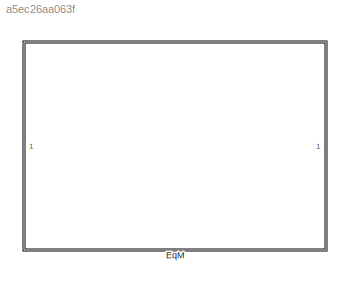
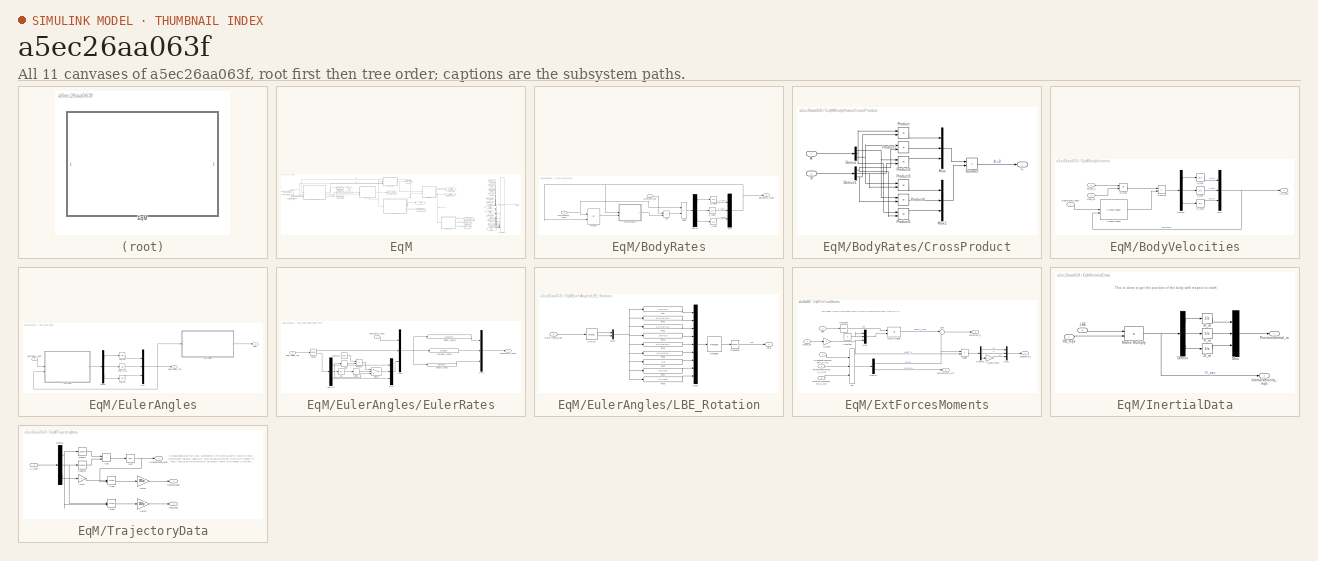
[diagram: thumbnail index - all 11 canvases of the model, root first then tree order]
MODEL slx_a5ec26aa063f
KIND library
CONFIG AbsTol = auto
CONFIG EnableMultiTasking = off
CONFIG FixedStep = auto
CONFIG MaxStep = auto
CONFIG MinStep = auto
CONFIG RelTol = 1e-3
CONFIG SampleTimeConstraint = Unconstrained
CONFIG SolverName = VariableStepAuto
CONFIG StartTime = 0.0
CONFIG StopTime = 10.0
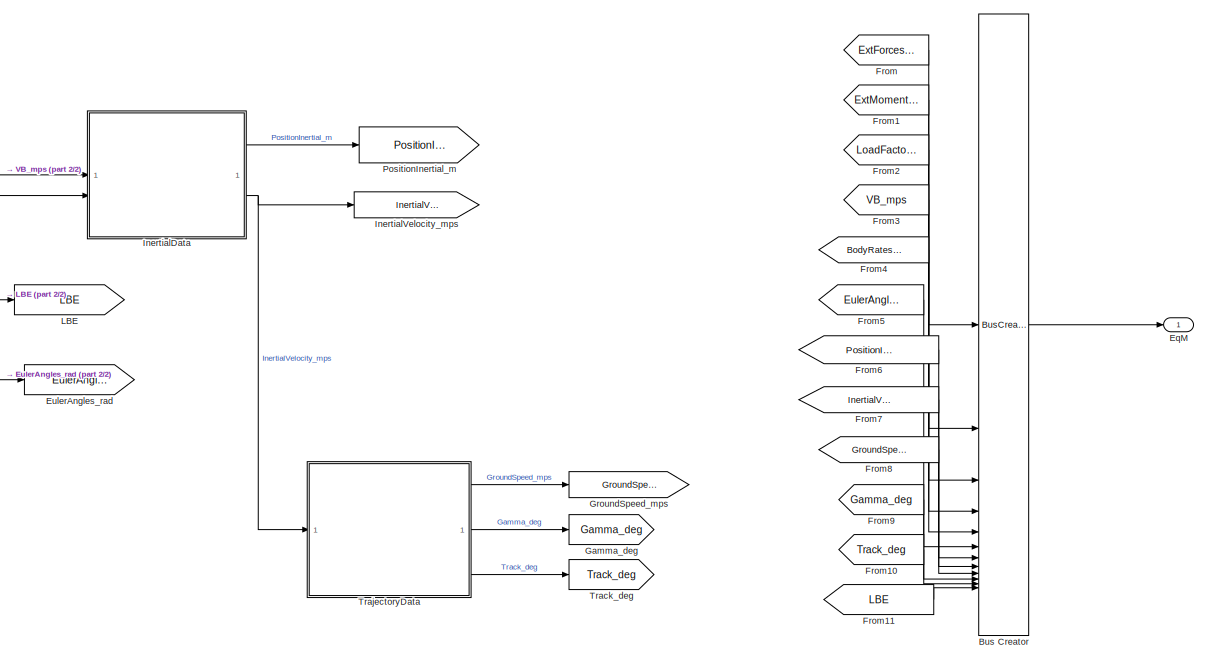
[diagram: EqM - part 1/2, right side, full height]
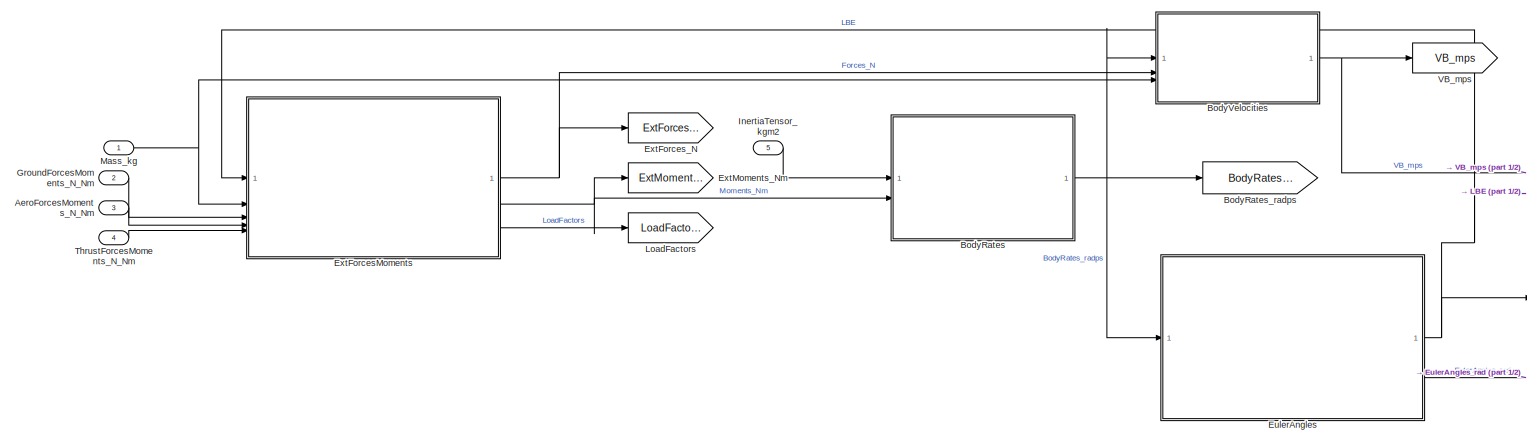
[diagram: EqM - part 2/2, middle left region]
BLOCK [SubSystem] EqM
BLOCK [Inport] EqM/AeroForcesMoments_N_Nm
  Port = 3
BLOCK [SubSystem] EqM/BodyRates
BLOCK [Sum] EqM/BodyRates/Add
  IconShape = rectangular
  Inputs = +-
BLOCK [Outport] EqM/BodyRates/BodyRates_radps
BLOCK [SubSystem] EqM/BodyRates/CrossProduct
BLOCK [Inport] EqM/BodyRates/CrossProduct/A
BLOCK [Inport] EqM/BodyRates/CrossProduct/B
  Port = 2
BLOCK [Outport] EqM/BodyRates/CrossProduct/C
BLOCK [Demux] EqM/BodyRates/CrossProduct/Demux
  Outputs = 3
BLOCK [Demux] EqM/BodyRates/CrossProduct/Demux1
  Outputs = 3
BLOCK [Mux] EqM/BodyRates/CrossProduct/Mux
  DisplayOption = bar
  Inputs = 3
BLOCK [Mux] EqM/BodyRates/CrossProduct/Mux1
  DisplayOption = bar
  Inputs = 3
BLOCK [Product] EqM/BodyRates/CrossProduct/Product
BLOCK [Product] EqM/BodyRates/CrossProduct/Product1
BLOCK [Product] EqM/BodyRates/CrossProduct/Product2
BLOCK [Product] EqM/BodyRates/CrossProduct/Product3
BLOCK [Product] EqM/BodyRates/CrossProduct/Product4
BLOCK [Product] EqM/BodyRates/CrossProduct/Product5
BLOCK [Sum] EqM/BodyRates/CrossProduct/Subtract
  IconShape = rectangular
  Inputs = +-
BLOCK [Demux] EqM/BodyRates/Demux
  Outputs = 3
BLOCK [Product] EqM/BodyRates/Divide
  Inputs = /*
  Multiplication = Matrix(*)
BLOCK [Inport] EqM/BodyRates/InertiaTensor_kgm2
BLOCK [Inport] EqM/BodyRates/Moments_Nm
  Port = 2
BLOCK [Mux] EqM/BodyRates/Mux
  DisplayOption = bar
  Inputs = 3
BLOCK [Product] EqM/BodyRates/Product
  Multiplication = Matrix(*)
BLOCK [Integrator] EqM/BodyRates/p_radps
  ContinuousStateAttributes = 'p_radps'
BLOCK [Integrator] EqM/BodyRates/q_radps
  ContinuousStateAttributes = 'q_radps'
BLOCK [Integrator] EqM/BodyRates/r_radps
  ContinuousStateAttributes = 'r_radps'
BLOCK [Goto] EqM/BodyRates_radps
  GotoTag = BodyRates_radps
BLOCK [SubSystem] EqM/BodyVelocities
BLOCK [Inport] EqM/BodyVelocities/BodyRates_radps
BLOCK [Reference] EqM/BodyVelocities/CrossProduct  REF=$bdroot/EqM/BodyRates/CrossProduct
  SourceBlock = $bdroot/EqM/BodyRates/CrossProduct
  SourceType = SubSystem
BLOCK [Demux] EqM/BodyVelocities/Demux
  Outputs = 3
BLOCK [Product] EqM/BodyVelocities/Divide
  Inputs = */
BLOCK [Inport] EqM/BodyVelocities/Forces_N
  Port = 2
BLOCK [Inport] EqM/BodyVelocities/Mass_kg
  Port = 3
BLOCK [Mux] EqM/BodyVelocities/Mux
  DisplayOption = bar
  Inputs = 3
BLOCK [Sum] EqM/BodyVelocities/Subtract
  IconShape = rectangular
  Inputs = +-
BLOCK [Outport] EqM/BodyVelocities/VB_mps
BLOCK [Integrator] EqM/BodyVelocities/u_mps
  ContinuousStateAttributes = 'u_mps'
BLOCK [Integrator] EqM/BodyVelocities/v_mps
  ContinuousStateAttributes = 'v_mps'
BLOCK [Integrator] EqM/BodyVelocities/w_mps
  ContinuousStateAttributes = 'w_mps'
BLOCK [BusCreator] EqM/Bus Creator
  DisplayOption = bar
  InheritFromInputs = on
  Inputs = 12
BLOCK [Outport] EqM/EqM
BLOCK [SubSystem] EqM/EulerAngles
BLOCK [Inport] EqM/EulerAngles/BodyRates_radps
BLOCK [Demux] EqM/EulerAngles/Demux
  Outputs = 3
BLOCK [Outport] EqM/EulerAngles/EulerAngles_rad
  Port = 2
BLOCK [SubSystem] EqM/EulerAngles/EulerRates
BLOCK [Abs] EqM/EulerAngles/EulerRates/Abs
  SaturateOnIntegerOverflow = off
BLOCK [Inport] EqM/EulerAngles/EulerRates/BodyRates_radps
BLOCK [Constant] EqM/EulerAngles/EulerRates/Constant
  Value = 0.001
BLOCK [Demux] EqM/EulerAngles/EulerRates/Demux1
  Outputs = 3
BLOCK [Inport] EqM/EulerAngles/EulerRates/EulerAngles_rad
  Port = 2
BLOCK [Outport] EqM/EulerAngles/EulerRates/EulerRates_radps2
BLOCK [Mux] EqM/EulerAngles/EulerRates/Mux
  DisplayOption = bar
  Inputs = 3
BLOCK [Mux] EqM/EulerAngles/EulerRates/Mux1
  DisplayOption = bar
  Inputs = 3
BLOCK [Mux] EqM/EulerAngles/EulerRates/Mux2
  DisplayOption = bar
  Inputs = 3
BLOCK [Product] EqM/EulerAngles/EulerRates/Product
BLOCK [Relay] EqM/EulerAngles/EulerRates/Relay
  OffOutputValue = 1
  OffSwitchValue = 0
  OnOutputValue = 0
  OnSwitchValue = 0.001
BLOCK [Signum] EqM/EulerAngles/EulerRates/Sign
BLOCK [Trigonometry] EqM/EulerAngles/EulerRates/SinCos
  Operator = sincos
BLOCK [Switch] EqM/EulerAngles/EulerRates/Switch
  Criteria = u2 > Threshold
  InputSameDT = off
  SaturateOnIntegerOverflow = off
  Threshold = 0.5
BLOCK [Fcn] EqM/EulerAngles/EulerRates/phidot_radps2
  Expr = u(1)+u(2)*u(4)*(u(5)/u(8))+u(3)*u(7)*(u(5)/u(8))
BLOCK [Fcn] EqM/EulerAngles/EulerRates/psidot_radps2
  Expr = (u(2)*u(5)+u(3)*u(7))/u(8)
BLOCK [Fcn] EqM/EulerAngles/EulerRates/thetadot_radps2
  Expr = u(2)*u(8)-u(3)*u(4)
BLOCK [Outport] EqM/EulerAngles/LBE
BLOCK [SubSystem] EqM/EulerAngles/LBE_Rotation
BLOCK [Inport] EqM/EulerAngles/LBE_Rotation/EulerAngles_rad
BLOCK [Fcn] EqM/EulerAngles/LBE_Rotation/Fcn
  Expr = u(5)*u(6)
BLOCK [Fcn] EqM/EulerAngles/LBE_Rotation/Fcn1
  Expr = u(1)*u(2)*u(6)-u(4)*u(3)
BLOCK [Fcn] EqM/EulerAngles/LBE_Rotation/Fcn2
  Expr = u(4)*u(2)*u(6)+u(1)*u(3)
BLOCK [Fcn] EqM/EulerAngles/LBE_Rotation/Fcn3
  Expr = u(5)*u(3)
BLOCK [Fcn] EqM/EulerAngles/LBE_Rotation/Fcn4
  Expr = u(4)*u(6)+u(1)*u(2)*u(3)
BLOCK [Fcn] EqM/EulerAngles/LBE_Rotation/Fcn5
  Expr = -u(1)*u(6)+u(4)*u(2)*u(3)
BLOCK [Fcn] EqM/EulerAngles/LBE_Rotation/Fcn6
  Expr = -u(2)
BLOCK [Fcn] EqM/EulerAngles/LBE_Rotation/Fcn7
  Expr = u(1)*u(5)
BLOCK [Fcn] EqM/EulerAngles/LBE_Rotation/Fcn8
  Expr = u(4)*u(5)
BLOCK [Outport] EqM/EulerAngles/LBE_Rotation/LBE
BLOCK [Mux] EqM/EulerAngles/LBE_Rotation/Mux1
  DisplayOption = bar
  Inputs = 2
BLOCK [Mux] EqM/EulerAngles/LBE_Rotation/Mux2
  DisplayOption = bar
  Inputs = 9
BLOCK [Reshape] EqM/EulerAngles/LBE_Rotation/Reshape
  OutputDimensionality = Customize
  OutputDimensions = [3,3]
BLOCK [Trigonometry] EqM/EulerAngles/LBE_Rotation/SinCos
  Operator = sincos
BLOCK [Math] EqM/EulerAngles/LBE_Rotation/Transpose
  Operator = transpose
BLOCK [Mux] EqM/EulerAngles/Mux
  DisplayOption = bar
  Inputs = 3
BLOCK [Integrator] EqM/EulerAngles/PHI_rad
  ContinuousStateAttributes = 'PHI_rad'
BLOCK [Integrator] EqM/EulerAngles/PSI_rad
  ContinuousStateAttributes = 'PSI_rad'
BLOCK [Integrator] EqM/EulerAngles/THETA_rad
  ContinuousStateAttributes = 'THETA_rad'
BLOCK [Goto] EqM/EulerAngles_rad
  GotoTag = EulerAngles_rad
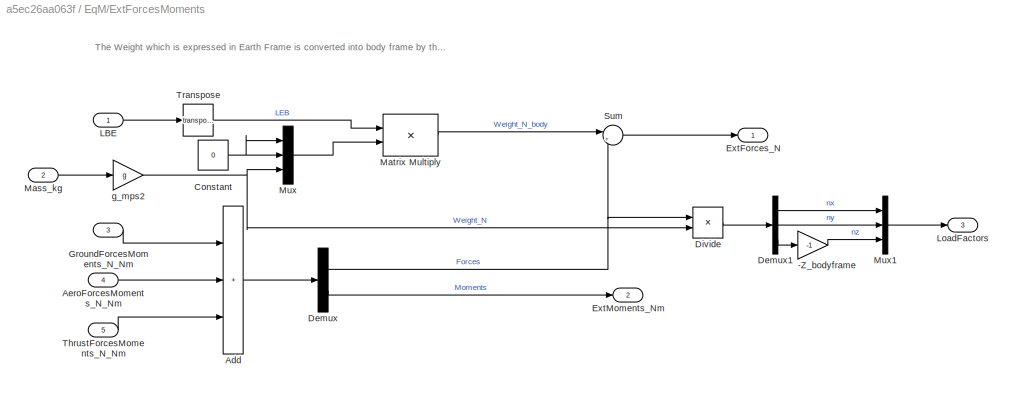
BLOCK [SubSystem] EqM/ExtForcesMoments
BLOCK [Gain] EqM/ExtForcesMoments/-Z_bodyframe
  Gain = -1
BLOCK [Sum] EqM/ExtForcesMoments/Add
  IconShape = rectangular
  Inputs = +++
BLOCK [Inport] EqM/ExtForcesMoments/AeroForcesMoments_N_Nm
  Port = 4
BLOCK [Constant] EqM/ExtForcesMoments/Constant
  Value = 0
BLOCK [Demux] EqM/ExtForcesMoments/Demux
  Outputs = 2
BLOCK [Demux] EqM/ExtForcesMoments/Demux1
  Outputs = 3
BLOCK [Product] EqM/ExtForcesMoments/Divide
  Inputs = */
  Multiplication = Matrix(*)
BLOCK [Outport] EqM/ExtForcesMoments/ExtForces_N
BLOCK [Outport] EqM/ExtForcesMoments/ExtMoments_Nm
  Port = 2
BLOCK [Inport] EqM/ExtForcesMoments/GroundForcesMoments_N_Nm
  Port = 3
BLOCK [Inport] EqM/ExtForcesMoments/LBE
BLOCK [Outport] EqM/ExtForcesMoments/LoadFactors
  Port = 3
BLOCK [Inport] EqM/ExtForcesMoments/Mass_kg
  Port = 2
BLOCK [Product] EqM/ExtForcesMoments/Matrix Multiply
  Multiplication = Matrix(*)
BLOCK [Mux] EqM/ExtForcesMoments/Mux
  DisplayOption = bar
  Inputs = 3
BLOCK [Mux] EqM/ExtForcesMoments/Mux1
  DisplayOption = bar
  Inputs = 3
BLOCK [Sum] EqM/ExtForcesMoments/Sum
  Inputs = |++
BLOCK [Inport] EqM/ExtForcesMoments/ThrustForcesMoments_N_Nm
  Port = 5
BLOCK [Math] EqM/ExtForcesMoments/Transpose
  Operator = transpose
BLOCK [Gain] EqM/ExtForcesMoments/g_mps2
  Gain = g
BLOCK [Goto] EqM/ExtForces_N
  GotoTag = ExtForces_N
BLOCK [Goto] EqM/ExtMoments_Nm
  GotoTag = ExtMoments_Nm
BLOCK [From] EqM/From
  GotoTag = ExtForces_N
BLOCK [From] EqM/From1
  GotoTag = ExtMoments_Nm
BLOCK [From] EqM/From10
  GotoTag = Track_deg
BLOCK [From] EqM/From11
  GotoTag = LBE
BLOCK [From] EqM/From2
  GotoTag = LoadFactors
BLOCK [From] EqM/From3
  GotoTag = VB_mps
BLOCK [From] EqM/From4
  GotoTag = BodyRates_radps
BLOCK [From] EqM/From5
  GotoTag = EulerAngles_rad
BLOCK [From] EqM/From6
  GotoTag = PositionInertial_m
BLOCK [From] EqM/From7
  GotoTag = InertialVelocity_mps
BLOCK [From] EqM/From8
  GotoTag = GroundSpeed_mps
BLOCK [From] EqM/From9
  GotoTag = Gamma_deg
BLOCK [Goto] EqM/Gamma_deg
  GotoTag = Gamma_deg
BLOCK [Inport] EqM/GroundForcesMoments_N_Nm
  Port = 2
BLOCK [Goto] EqM/GroundSpeed_mps
  GotoTag = GroundSpeed_mps
BLOCK [Inport] EqM/InertiaTensor_kgm2
  Port = 5
BLOCK [SubSystem] EqM/InertialData
BLOCK [Demux] EqM/InertialData/Demux
  Outputs = 3
BLOCK [Outport] EqM/InertialData/InertialVelocity_mps
  Port = 2
BLOCK [Inport] EqM/InertialData/LBE
  Port = 2
BLOCK [Product] EqM/InertialData/Matrix Multiply
  Multiplication = Matrix(*)
BLOCK [Mux] EqM/InertialData/Mux
  DisplayOption = bar
  Inputs = 3
BLOCK [Outport] EqM/InertialData/PositionInertial_m
BLOCK [Inport] EqM/InertialData/VB_mps
BLOCK [Integrator] EqM/InertialData/XI_m
  ContinuousStateAttributes = 'XI_m'
BLOCK [Integrator] EqM/InertialData/YI_m
  ContinuousStateAttributes = 'YI_m'
BLOCK [Integrator] EqM/InertialData/ZI_m
  ContinuousStateAttributes = 'ZI_m'
BLOCK [Goto] EqM/InertialVelocity_mps
  GotoTag = InertialVelocity_mps
BLOCK [Goto] EqM/LBE
  GotoTag = LBE
BLOCK [Goto] EqM/LoadFactors
  GotoTag = LoadFactors
BLOCK [Inport] EqM/Mass_kg
BLOCK [Goto] EqM/PositionInertial_m
  GotoTag = PositionInertial_m
BLOCK [Inport] EqM/ThrustForcesMoments_N_Nm
  Port = 4
BLOCK [Goto] EqM/Track_deg
  GotoTag = Track_deg
BLOCK [SubSystem] EqM/TrajectoryData
BLOCK [Sum] EqM/TrajectoryData/Add
  IconShape = rectangular
BLOCK [Trigonometry] EqM/TrajectoryData/Atan1
  Operator = atan2
BLOCK [Trigonometry] EqM/TrajectoryData/Atan2
  Operator = atan2
BLOCK [Demux] EqM/TrajectoryData/Demux
  Outputs = 3
BLOCK [Gain] EqM/TrajectoryData/Gain
  Gain = -1
BLOCK [Gain] EqM/TrajectoryData/Gain1
  Gain = 180/pi
BLOCK [Gain] EqM/TrajectoryData/Gain2
  Gain = 180/pi
BLOCK [Outport] EqM/TrajectoryData/Gamma_deg
  Port = 2
BLOCK [Outport] EqM/TrajectoryData/GroundSpeed_mps
BLOCK [Sqrt] EqM/TrajectoryData/Sqrt
BLOCK [Math] EqM/TrajectoryData/Square
  Operator = square
BLOCK [Math] EqM/TrajectoryData/Square1
  Operator = square
BLOCK [Outport] EqM/TrajectoryData/Track_deg
  Port = 3
BLOCK [Inport] EqM/TrajectoryData/VI_mps
BLOCK [Goto] EqM/VB_mps
  GotoTag = VB_mps
ANNOTATION EqM/ExtForcesMoments: The Weight which is expressed in Earth Frame is converted into body frame by the matrix multiplication. The sum of external forces is given by adding all the forces with weight. The forces are divided by Weight to give the load factors.
ANNOTATION EqM/InertialData: This is done to get the position of the body with respect to earth
ANNOTATION EqM/TrajectoryData: GroundSpeed gives the x and y components in the inertial(earth) frame of reference Gamma_deg Trajectory angle will give the data on aircraft climb with respect to the horizon. Track Angle gives the direction of the velocity vector with respect to the north.
LINE EqM/AeroForcesMoments_N_Nm:1 -> EqM/ExtForcesMoments:4
LINE EqM/BodyRates/Add:1 -> EqM/BodyRates/Divide:2
LINE EqM/BodyRates/CrossProduct/A:1 -> EqM/BodyRates/CrossProduct/Demux:1
LINE EqM/BodyRates/CrossProduct/B:1 -> EqM/BodyRates/CrossProduct/Demux1:1
NET EqM/BodyRates/CrossProduct/Demux1:1 -> EqM/BodyRates/CrossProduct/Product1:2, EqM/BodyRates/CrossProduct/Product5:2
NET EqM/BodyRates/CrossProduct/Demux1:2 -> EqM/BodyRates/CrossProduct/Product2:2, EqM/BodyRates/CrossProduct/Product3:2
NET EqM/BodyRates/CrossProduct/Demux1:3 -> EqM/BodyRates/CrossProduct/Product4:2, EqM/BodyRates/CrossProduct/Product:2
NET EqM/BodyRates/CrossProduct/Demux:1 -> EqM/BodyRates/CrossProduct/Product2:1, EqM/BodyRates/CrossProduct/Product4:1
NET EqM/BodyRates/CrossProduct/Demux:2 -> EqM/BodyRates/CrossProduct/Product5:1, EqM/BodyRates/CrossProduct/Product:1
NET EqM/BodyRates/CrossProduct/Demux:3 -> EqM/BodyRates/CrossProduct/Product1:1, EqM/BodyRates/CrossProduct/Product3:1
LINE EqM/BodyRates/CrossProduct/Mux1:1 -> EqM/BodyRates/CrossProduct/Subtract:2
LINE EqM/BodyRates/CrossProduct/Mux:1 -> EqM/BodyRates/CrossProduct/Subtract:1
LINE EqM/BodyRates/CrossProduct/Product1:1 -> EqM/BodyRates/CrossProduct/Mux:2
LINE EqM/BodyRates/CrossProduct/Product2:1 -> EqM/BodyRates/CrossProduct/Mux:3
LINE EqM/BodyRates/CrossProduct/Product3:1 -> EqM/BodyRates/CrossProduct/Mux1:1
LINE EqM/BodyRates/CrossProduct/Product4:1 -> EqM/BodyRates/CrossProduct/Mux1:2
LINE EqM/BodyRates/CrossProduct/Product5:1 -> EqM/BodyRates/CrossProduct/Mux1:3
LINE EqM/BodyRates/CrossProduct/Product:1 -> EqM/BodyRates/CrossProduct/Mux:1
LINE EqM/BodyRates/CrossProduct/Subtract:1 -> EqM/BodyRates/CrossProduct/C:1
LINE EqM/BodyRates/CrossProduct:1 -> EqM/BodyRates/Add:2
LINE EqM/BodyRates/Demux:1 -> EqM/BodyRates/p_radps:1
LINE EqM/BodyRates/Demux:2 -> EqM/BodyRates/q_radps:1
LINE EqM/BodyRates/Demux:3 -> EqM/BodyRates/r_radps:1
LINE EqM/BodyRates/Divide:1 -> EqM/BodyRates/Demux:1
NET EqM/BodyRates/InertiaTensor_kgm2:1 -> EqM/BodyRates/Divide:1, EqM/BodyRates/Product:1
LINE EqM/BodyRates/Moments_Nm:1 -> EqM/BodyRates/Add:1
NET EqM/BodyRates/Mux:1 -> EqM/BodyRates/BodyRates_radps:1, EqM/BodyRates/CrossProduct:1, EqM/BodyRates/Product:2
LINE EqM/BodyRates/Product:1 -> EqM/BodyRates/CrossProduct:2
LINE EqM/BodyRates/p_radps:1 -> EqM/BodyRates/Mux:1
LINE EqM/BodyRates/q_radps:1 -> EqM/BodyRates/Mux:2
LINE EqM/BodyRates/r_radps:1 -> EqM/BodyRates/Mux:3
NET EqM/BodyRates:1 -> EqM/BodyRates_radps:1, EqM/BodyVelocities:1, EqM/EulerAngles:1
LINE EqM/BodyVelocities/BodyRates_radps:1 -> EqM/BodyVelocities/CrossProduct:1
LINE EqM/BodyVelocities/CrossProduct:1 -> EqM/BodyVelocities/Subtract:2
LINE EqM/BodyVelocities/Demux:1 -> EqM/BodyVelocities/u_mps:1
LINE EqM/BodyVelocities/Demux:2 -> EqM/BodyVelocities/v_mps:1
LINE EqM/BodyVelocities/Demux:3 -> EqM/BodyVelocities/w_mps:1
LINE EqM/BodyVelocities/Divide:1 -> EqM/BodyVelocities/Subtract:1
LINE EqM/BodyVelocities/Forces_N:1 -> EqM/BodyVelocities/Divide:1
LINE EqM/BodyVelocities/Mass_kg:1 -> EqM/BodyVelocities/Divide:2
NET EqM/BodyVelocities/Mux:1 -> EqM/BodyVelocities/CrossProduct:2, EqM/BodyVelocities/VB_mps:1
LINE EqM/BodyVelocities/Subtract:1 -> EqM/BodyVelocities/Demux:1
LINE EqM/BodyVelocities/u_mps:1 -> EqM/BodyVelocities/Mux:1
LINE EqM/BodyVelocities/v_mps:1 -> EqM/BodyVelocities/Mux:2
LINE EqM/BodyVelocities/w_mps:1 -> EqM/BodyVelocities/Mux:3
NET EqM/BodyVelocities:1 -> EqM/InertialData:1, EqM/VB_mps:1
LINE EqM/Bus Creator:1 -> EqM/EqM:1
LINE EqM/EulerAngles/BodyRates_radps:1 -> EqM/EulerAngles/EulerRates:1
LINE EqM/EulerAngles/Demux:1 -> EqM/EulerAngles/PHI_rad:1
LINE EqM/EulerAngles/Demux:2 -> EqM/EulerAngles/THETA_rad:1
LINE EqM/EulerAngles/Demux:3 -> EqM/EulerAngles/PSI_rad:1
LINE EqM/EulerAngles/EulerRates/Abs:1 -> EqM/EulerAngles/EulerRates/Relay:1
LINE EqM/EulerAngles/EulerRates/BodyRates_radps:1 -> EqM/EulerAngles/EulerRates/Mux:1
LINE EqM/EulerAngles/EulerRates/Constant:1 -> EqM/EulerAngles/EulerRates/Product:1
LINE EqM/EulerAngles/EulerRates/Demux1:1 -> EqM/EulerAngles/EulerRates/Mux1:1
NET EqM/EulerAngles/EulerRates/Demux1:2 -> EqM/EulerAngles/EulerRates/Abs:1, EqM/EulerAngles/EulerRates/Sign:1, EqM/EulerAngles/EulerRates/Switch:3
LINE EqM/EulerAngles/EulerRates/Demux1:3 -> EqM/EulerAngles/EulerRates/Mux1:3
LINE EqM/EulerAngles/EulerRates/EulerAngles_rad:1 -> EqM/EulerAngles/EulerRates/SinCos:1
LINE EqM/EulerAngles/EulerRates/Mux1:1 -> EqM/EulerAngles/EulerRates/Mux:3
LINE EqM/EulerAngles/EulerRates/Mux2:1 -> EqM/EulerAngles/EulerRates/EulerRates_radps2:1
NET EqM/EulerAngles/EulerRates/Mux:1 -> EqM/EulerAngles/EulerRates/phidot_radps2:1, EqM/EulerAngles/EulerRates/psidot_radps2:1, EqM/EulerAngles/EulerRates/thetadot_radps2:1
LINE EqM/EulerAngles/EulerRates/Product:1 -> EqM/EulerAngles/EulerRates/Switch:1
LINE EqM/EulerAngles/EulerRates/Relay:1 -> EqM/EulerAngles/EulerRates/Switch:2
LINE EqM/EulerAngles/EulerRates/Sign:1 -> EqM/EulerAngles/EulerRates/Product:2
LINE EqM/EulerAngles/EulerRates/SinCos:1 -> EqM/EulerAngles/EulerRates/Mux:2
LINE EqM/EulerAngles/EulerRates/SinCos:2 -> EqM/EulerAngles/EulerRates/Demux1:1
LINE EqM/EulerAngles/EulerRates/Switch:1 -> EqM/EulerAngles/EulerRates/Mux1:2
LINE EqM/EulerAngles/EulerRates/phidot_radps2:1 -> EqM/EulerAngles/EulerRates/Mux2:1
LINE EqM/EulerAngles/EulerRates/psidot_radps2:1 -> EqM/EulerAngles/EulerRates/Mux2:3
LINE EqM/EulerAngles/EulerRates/thetadot_radps2:1 -> EqM/EulerAngles/EulerRates/Mux2:2
LINE EqM/EulerAngles/EulerRates:1 -> EqM/EulerAngles/Demux:1
LINE EqM/EulerAngles/LBE_Rotation/EulerAngles_rad:1 -> EqM/EulerAngles/LBE_Rotation/SinCos:1
LINE EqM/EulerAngles/LBE_Rotation/Fcn1:1 -> EqM/EulerAngles/LBE_Rotation/Mux2:2
LINE EqM/EulerAngles/LBE_Rotation/Fcn2:1 -> EqM/EulerAngles/LBE_Rotation/Mux2:3
LINE EqM/EulerAngles/LBE_Rotation/Fcn3:1 -> EqM/EulerAngles/LBE_Rotation/Mux2:4
LINE EqM/EulerAngles/LBE_Rotation/Fcn4:1 -> EqM/EulerAngles/LBE_Rotation/Mux2:5
LINE EqM/EulerAngles/LBE_Rotation/Fcn5:1 -> EqM/EulerAngles/LBE_Rotation/Mux2:6
LINE EqM/EulerAngles/LBE_Rotation/Fcn6:1 -> EqM/EulerAngles/LBE_Rotation/Mux2:7
LINE EqM/EulerAngles/LBE_Rotation/Fcn7:1 -> EqM/EulerAngles/LBE_Rotation/Mux2:8
LINE EqM/EulerAngles/LBE_Rotation/Fcn8:1 -> EqM/EulerAngles/LBE_Rotation/Mux2:9
LINE EqM/EulerAngles/LBE_Rotation/Fcn:1 -> EqM/EulerAngles/LBE_Rotation/Mux2:1
NET EqM/EulerAngles/LBE_Rotation/Mux1:1 -> EqM/EulerAngles/LBE_Rotation/Fcn1:1, EqM/EulerAngles/LBE_Rotation/Fcn2:1, EqM/EulerAngles/LBE_Rotation/Fcn3:1, EqM/EulerAngles/LBE_Rotation/Fcn4:1, EqM/EulerAngles/LBE_Rotation/Fcn5:1, EqM/EulerAngles/LBE_Rotation/Fcn6:1, EqM/EulerAngles/LBE_Rotation/Fcn7:1, EqM/EulerAngles/LBE_Rotation/Fcn8:1, EqM/EulerAngles/LBE_Rotation/Fcn:1
LINE EqM/EulerAngles/LBE_Rotation/Mux2:1 -> EqM/EulerAngles/LBE_Rotation/Reshape:1
LINE EqM/EulerAngles/LBE_Rotation/Reshape:1 -> EqM/EulerAngles/LBE_Rotation/Transpose:1
LINE EqM/EulerAngles/LBE_Rotation/SinCos:1 -> EqM/EulerAngles/LBE_Rotation/Mux1:1
LINE EqM/EulerAngles/LBE_Rotation/SinCos:2 -> EqM/EulerAngles/LBE_Rotation/Mux1:2
LINE EqM/EulerAngles/LBE_Rotation/Transpose:1 -> EqM/EulerAngles/LBE_Rotation/LBE:1
LINE EqM/EulerAngles/LBE_Rotation:1 -> EqM/EulerAngles/LBE:1
NET EqM/EulerAngles/Mux:1 -> EqM/EulerAngles/EulerAngles_rad:1, EqM/EulerAngles/EulerRates:2, EqM/EulerAngles/LBE_Rotation:1
LINE EqM/EulerAngles/PHI_rad:1 -> EqM/EulerAngles/Mux:1
LINE EqM/EulerAngles/PSI_rad:1 -> EqM/EulerAngles/Mux:3
LINE EqM/EulerAngles/THETA_rad:1 -> EqM/EulerAngles/Mux:2
NET EqM/EulerAngles:1 -> EqM/ExtForcesMoments:1, EqM/InertialData:2, EqM/LBE:1
LINE EqM/EulerAngles:2 -> EqM/EulerAngles_rad:1
LINE EqM/ExtForcesMoments/-Z_bodyframe:1 -> EqM/ExtForcesMoments/Mux1:3
LINE EqM/ExtForcesMoments/Add:1 -> EqM/ExtForcesMoments/Demux:1
LINE EqM/ExtForcesMoments/AeroForcesMoments_N_Nm:1 -> EqM/ExtForcesMoments/Add:2
NET EqM/ExtForcesMoments/Constant:1 -> EqM/ExtForcesMoments/Mux:1, EqM/ExtForcesMoments/Mux:2
LINE EqM/ExtForcesMoments/Demux1:1 -> EqM/ExtForcesMoments/Mux1:1
LINE EqM/ExtForcesMoments/Demux1:2 -> EqM/ExtForcesMoments/Mux1:2
LINE EqM/ExtForcesMoments/Demux1:3 -> EqM/ExtForcesMoments/-Z_bodyframe:1
NET EqM/ExtForcesMoments/Demux:1 -> EqM/ExtForcesMoments/Divide:1, EqM/ExtForcesMoments/Sum:2
LINE EqM/ExtForcesMoments/Demux:2 -> EqM/ExtForcesMoments/ExtMoments_Nm:1
LINE EqM/ExtForcesMoments/Divide:1 -> EqM/ExtForcesMoments/Demux1:1
LINE EqM/ExtForcesMoments/GroundForcesMoments_N_Nm:1 -> EqM/ExtForcesMoments/Add:1
LINE EqM/ExtForcesMoments/LBE:1 -> EqM/ExtForcesMoments/Transpose:1
LINE EqM/ExtForcesMoments/Mass_kg:1 -> EqM/ExtForcesMoments/g_mps2:1
LINE EqM/ExtForcesMoments/Matrix Multiply:1 -> EqM/ExtForcesMoments/Sum:1
LINE EqM/ExtForcesMoments/Mux1:1 -> EqM/ExtForcesMoments/LoadFactors:1
LINE EqM/ExtForcesMoments/Mux:1 -> EqM/ExtForcesMoments/Matrix Multiply:2
LINE EqM/ExtForcesMoments/Sum:1 -> EqM/ExtForcesMoments/ExtForces_N:1
LINE EqM/ExtForcesMoments/ThrustForcesMoments_N_Nm:1 -> EqM/ExtForcesMoments/Add:3
LINE EqM/ExtForcesMoments/Transpose:1 -> EqM/ExtForcesMoments/Matrix Multiply:1
NET EqM/ExtForcesMoments/g_mps2:1 -> EqM/ExtForcesMoments/Divide:2, EqM/ExtForcesMoments/Mux:3
NET EqM/ExtForcesMoments:1 -> EqM/BodyVelocities:2, EqM/ExtForces_N:1
NET EqM/ExtForcesMoments:2 -> EqM/BodyRates:2, EqM/ExtMoments_Nm:1
LINE EqM/ExtForcesMoments:3 -> EqM/LoadFactors:1
LINE EqM/From10:1 -> EqM/Bus Creator:11
LINE EqM/From11:1 -> EqM/Bus Creator:12
LINE EqM/From1:1 -> EqM/Bus Creator:2
LINE EqM/From2:1 -> EqM/Bus Creator:3
LINE EqM/From3:1 -> EqM/Bus Creator:4
LINE EqM/From4:1 -> EqM/Bus Creator:5
LINE EqM/From5:1 -> EqM/Bus Creator:6
LINE EqM/From6:1 -> EqM/Bus Creator:7
LINE EqM/From7:1 -> EqM/Bus Creator:8
LINE EqM/From8:1 -> EqM/Bus Creator:9
LINE EqM/From9:1 -> EqM/Bus Creator:10
LINE EqM/From:1 -> EqM/Bus Creator:1
LINE EqM/GroundForcesMoments_N_Nm:1 -> EqM/ExtForcesMoments:3
LINE EqM/InertiaTensor_kgm2:1 -> EqM/BodyRates:1
LINE EqM/InertialData/Demux:1 -> EqM/InertialData/XI_m:1
LINE EqM/InertialData/Demux:2 -> EqM/InertialData/YI_m:1
LINE EqM/InertialData/Demux:3 -> EqM/InertialData/ZI_m:1
LINE EqM/InertialData/LBE:1 -> EqM/InertialData/Matrix Multiply:1
NET EqM/InertialData/Matrix Multiply:1 -> EqM/InertialData/Demux:1, EqM/InertialData/InertialVelocity_mps:1
LINE EqM/InertialData/Mux:1 -> EqM/InertialData/PositionInertial_m:1
LINE EqM/InertialData/VB_mps:1 -> EqM/InertialData/Matrix Multiply:2
LINE EqM/InertialData/XI_m:1 -> EqM/InertialData/Mux:1
LINE EqM/InertialData/YI_m:1 -> EqM/InertialData/Mux:2
LINE EqM/InertialData/ZI_m:1 -> EqM/InertialData/Mux:3
LINE EqM/InertialData:1 -> EqM/PositionInertial_m:1
NET EqM/InertialData:2 -> EqM/InertialVelocity_mps:1, EqM/TrajectoryData:1
NET EqM/Mass_kg:1 -> EqM/BodyVelocities:3, EqM/ExtForcesMoments:2
LINE EqM/ThrustForcesMoments_N_Nm:1 -> EqM/ExtForcesMoments:5
LINE EqM/TrajectoryData/Add:1 -> EqM/TrajectoryData/Sqrt:1
LINE EqM/TrajectoryData/Atan1:1 -> EqM/TrajectoryData/Gain2:1
LINE EqM/TrajectoryData/Atan2:1 -> EqM/TrajectoryData/Gain1:1
NET EqM/TrajectoryData/Demux:1 -> EqM/TrajectoryData/Atan1:2, EqM/TrajectoryData/Square:1
NET EqM/TrajectoryData/Demux:2 -> EqM/TrajectoryData/Atan1:1, EqM/TrajectoryData/Square1:1
LINE EqM/TrajectoryData/Demux:3 -> EqM/TrajectoryData/Gain:1
LINE EqM/TrajectoryData/Gain1:1 -> EqM/TrajectoryData/Gamma_deg:1
LINE EqM/TrajectoryData/Gain2:1 -> EqM/TrajectoryData/Track_deg:1
LINE EqM/TrajectoryData/Gain:1 -> EqM/TrajectoryData/Atan2:1
NET EqM/TrajectoryData/Sqrt:1 -> EqM/TrajectoryData/Atan2:2, EqM/TrajectoryData/GroundSpeed_mps:1
LINE EqM/TrajectoryData/Square1:1 -> EqM/TrajectoryData/Add:2
LINE EqM/TrajectoryData/Square:1 -> EqM/TrajectoryData/Add:1
LINE EqM/TrajectoryData/VI_mps:1 -> EqM/TrajectoryData/Demux:1
LINE EqM/TrajectoryData:1 -> EqM/GroundSpeed_mps:1
LINE EqM/TrajectoryData:2 -> EqM/Gamma_deg:1
LINE EqM/TrajectoryData:3 -> EqM/Track_deg:1
note: NET lines group one-source signal fan-out (src -> all destinations, sorted); 1:1 wires keep LINE
